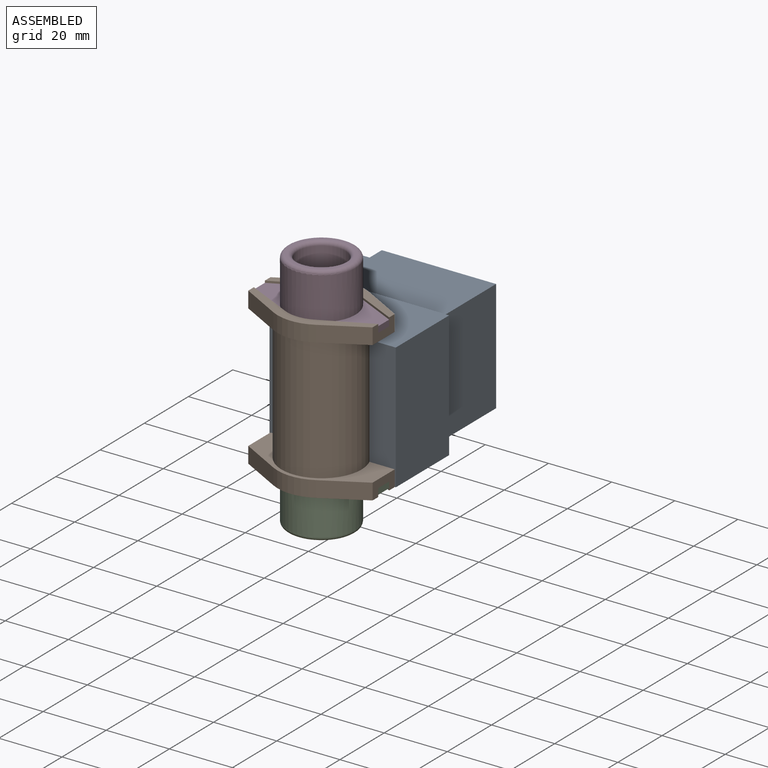
[diagram: assembled view]
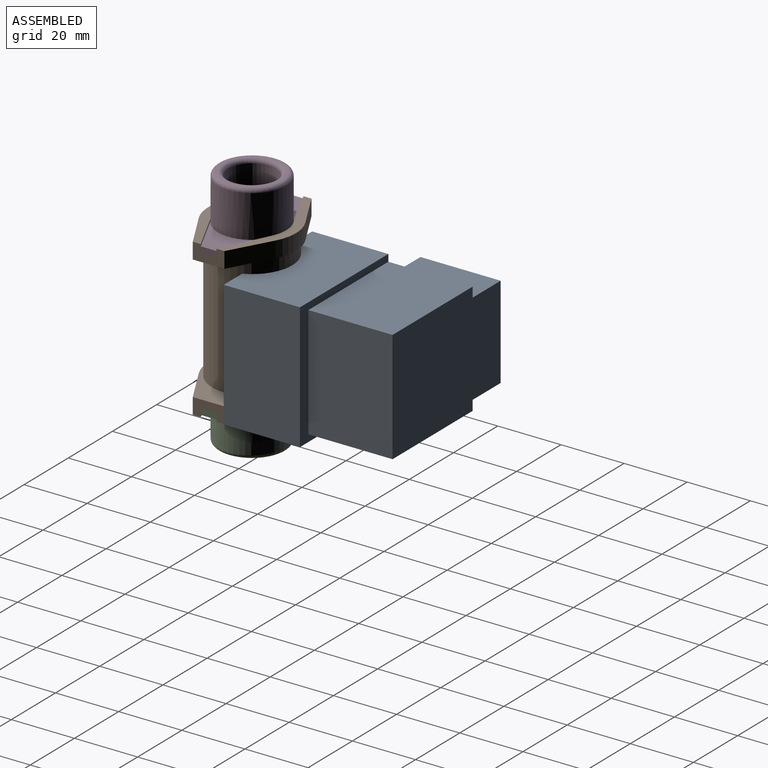
[diagram: assembled view, second angle]
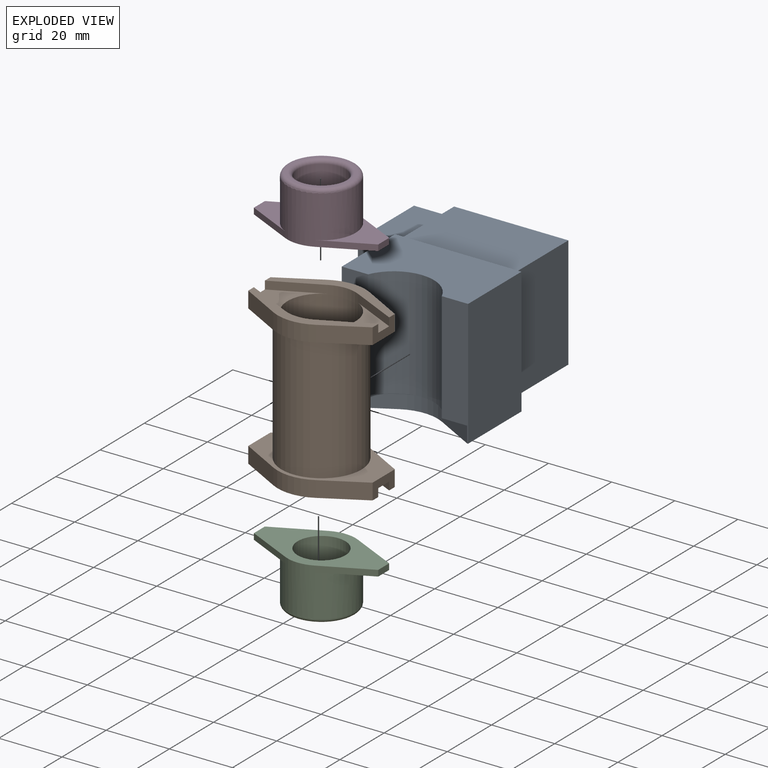
[diagram: exploded view]
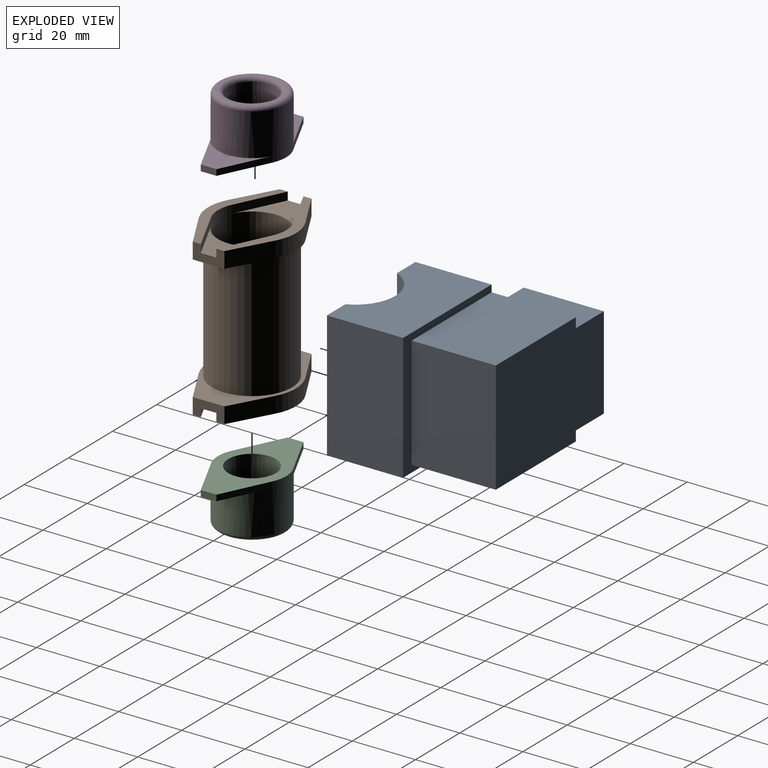
[diagram: exploded view, second angle]
ASSEMBLY  parts=4 mates=3
PART A: 20 faces, bbox 52.7x40x50.8 mm
  f0: plane 40.01x8.34mm, normal (0,0,-1), area 292.7mm2, adj f1,f2,f5,f15,f18,f19
  f1: plane 40.01x24.13mm, normal (0,-1,0), area 836mm2, adj f0,f3,f4,f5,f6,f19
  f2: plane 40.01x24.13mm, normal (0,1,0), area 760.6mm2, adj f0,f3,f4,f5,f6,f15,f16,f17
  f3: plane 40.01x8.34mm, normal (0,0,-1), area 292.7mm2, adj f1,f2,f4,f17,f18,f19
  f4: plane 40.01x24.13mm, normal (1,0,0), area 965.3mm2, adj f1,f2,f3,f6
  f5: plane 50.8x40.01mm, normal (-1,0,0), area 1170.5mm2, adj f0,f1,f2,f6,f7,f8,f10,f11
  f6: plane 40.01x40.01mm, normal (0,0,1), area 313.3mm2, adj f1,f2,f4,f5,f7,f8,f9
  f7: plane 36.2x26.67mm, normal (0,-1,0), area 965.3mm2, adj f5,f6,f9,f10
  f8: plane 36.2x26.67mm, normal (0,1,0), area 965.3mm2, adj f5,f6,f9,f10
  f9: plane 35.56x26.67mm, normal (1,0,0), area 948.4mm2, adj f6,f7,f8,f10
  f10: plane 48.9x35.56mm, normal (0,0,1), area 1658.7mm2, adj f5,f7,f8,f9,f11,f12,f13
  f11: plane 25.4x12.7mm, normal (0,1,0), area 322.6mm2, adj f5,f10,f12,f14
  f12: plane 29.26x25.4mm, normal (-1,0,0), area 743.2mm2, adj f10,f11,f13,f14
  f13: plane 25.4x12.7mm, normal (0,-1,0), area 322.6mm2, adj f5,f10,f12,f14
  f14: plane 29.26x12.7mm, normal (0,0,-1), area 371.6mm2, adj f5,f11,f12,f13
  f15: plane 12.96x7.16mm, normal (0.48,0,-0.88), area 75.2mm2, adj f0,f2,f16,f18
  f16: cylinder r=13.91mm len=13.44mm, axis (0,1,0), area 71.3mm2, adj f2,f15,f17,f18
  f17: plane 12.96x7.16mm, normal (-0.48,0,-0.88), area 75.2mm2, adj f2,f3,f16,f18
  f18: plane 39.37x8.89mm, normal (0,1,0), area 75.4mm2, adj f0,f3,f15,f16,f17,f19
  f19: cylinder r=12.7mm len=34.93mm, axis (0,1,0), area 1033.2mm2, adj f0,f1,f3,f18
PART B: 36 faces, bbox 39.4x27.8x49.5 mm
  f0: plane 19.44x14.99mm, normal (0,0,1), area 97.9mm2, adj f16,f18,f19,f28
  f1: plane 19.44x14.99mm, normal (0,0,-1), area 97.9mm2, adj f6,f18,f31,f34
  f2: plane 39.37x11.43mm, normal (0,0,-1), area 121.3mm2, adj f3,f6,f18,f25,f26,f27,f31,f32
  f3: plane 10.03x5.08mm, normal (1,0,0), area 38.4mm2, adj f2,f4,f10,f14,f27,f32,f33,f35
  f4: plane 39.37x11.43mm, normal (0,0,-1), area 121.3mm2, adj f3,f6,f10,f11,f12,f18,f33,f34
  f5: plane 10.03x5.08mm, normal (1,0,0), area 38.4mm2, adj f7,f13,f17,f20,f21,f24,f29,f30
  f6: plane 10.03x5.08mm, normal (-1,0,0), area 38.4mm2, adj f1,f2,f4,f12,f14,f25,f31,f34
  f7: plane 12.96x7.16mm, normal (0.48,0.88,0), area 75.2mm2, adj f5,f8,f13,f17
  f8: cylinder r=13.91mm len=13.44mm, axis (0,0,-1), area 71.3mm2, adj f7,f9,f13,f17
  f9: plane 12.96x7.16mm, normal (-0.48,0.88,0), area 75.2mm2, adj f8,f13,f16,f17
  f10: plane 12.96x7.16mm, normal (0.48,0.88,0), area 75.2mm2, adj f3,f4,f11,f14
  f11: cylinder r=13.91mm len=13.44mm, axis (0,0,-1), area 71.3mm2, adj f4,f10,f12,f14
  f12: plane 12.96x7.16mm, normal (-0.48,0.88,0), area 75.2mm2, adj f4,f6,f11,f14
  f13: plane 39.37x27.81mm, normal (0,0,-1), area 297.8mm2, adj f5,f7,f8,f9,f15,f16,f22,f23
  f14: plane 39.37x27.81mm, normal (0,0,1), area 297.8mm2, adj f3,f6,f10,f11,f12,f15,f25,f26
  f15: cylinder r=12.7mm len=39.37mm, axis (0,0,-1), area 3141.6mm2, adj f13,f14
  f16: plane 10.03x5.08mm, normal (-1,0,0), area 38.4mm2, adj f0,f9,f13,f17,f19,f21,f22,f28
  f17: plane 39.37x11.43mm, normal (0,0,1), area 121.3mm2, adj f5,f7,f8,f9,f16,f18,f19,f20
  f18: cylinder r=10.79mm len=49.53mm, axis (0,0,-1), area 3113.7mm2, adj f0,f1,f2,f4,f17,f19,f20,f21
  f19: plane 14.99x7.24mm, normal (0.44,-0.9,0), area 42.3mm2, adj f0,f16,f17,f18
  f20: plane 14.99x7.24mm, normal (-0.44,-0.9,0), area 42.3mm2, adj f5,f17,f18,f30
  f21: plane 39.37x11.43mm, normal (0,0,1), area 121.3mm2, adj f5,f16,f18,f22,f23,f24,f28,f29
  f22: plane 12.96x7.16mm, normal (-0.48,-0.88,0), area 75.2mm2, adj f13,f16,f21,f23
  f23: cylinder r=13.91mm len=13.44mm, axis (0,0,-1), area 71.3mm2, adj f13,f21,f22,f24
  f24: plane 12.96x7.16mm, normal (0.48,-0.88,0), area 75.2mm2, adj f5,f13,f21,f23
  f25: plane 12.96x7.16mm, normal (-0.48,-0.88,0), area 75.2mm2, adj f2,f6,f14,f26
  f26: cylinder r=13.91mm len=13.44mm, axis (0,0,-1), area 71.3mm2, adj f2,f14,f25,f27
  f27: plane 12.96x7.16mm, normal (0.48,-0.88,0), area 75.2mm2, adj f2,f3,f14,f26
  f28: plane 14.99x7.24mm, normal (0.44,0.9,0), area 42.3mm2, adj f0,f16,f18,f21
  f29: plane 14.99x7.24mm, normal (-0.44,0.9,0), area 42.3mm2, adj f5,f18,f21,f30
  f30: plane 19.44x14.99mm, normal (0,0,1), area 97.9mm2, adj f5,f18,f20,f29
  f31: plane 14.99x7.24mm, normal (0.44,0.9,0), area 42.3mm2, adj f1,f2,f6,f18
  f32: plane 14.99x7.24mm, normal (-0.44,0.9,0), area 42.3mm2, adj f2,f3,f18,f35
  f33: plane 14.99x7.24mm, normal (-0.44,-0.9,0), area 42.3mm2, adj f3,f4,f18,f35
  f34: plane 14.99x7.24mm, normal (0.44,-0.9,0), area 42.3mm2, adj f1,f4,f6,f18
  f35: plane 19.44x14.99mm, normal (0,0,-1), area 97.9mm2, adj f3,f18,f32,f33
PART C: 14 faces, bbox 39.4x23.4x16.5 mm
  f0: plane 14.99x7.24mm, normal (-0.44,0.9,0), area 31.7mm2, adj f1,f3,f4,f10
  f1: plane 4.95x1.91mm, normal (-1,0,0), area 9.4mm2, adj f0,f2,f3,f4
  f2: plane 14.99x7.24mm, normal (-0.44,-0.9,0), area 31.7mm2, adj f1,f3,f4,f10
  f3: plane 19.44x14.99mm, normal (0,0,1), area 97.9mm2, adj f0,f1,f2,f10
  f4: plane 39.37x21.59mm, normal (0,0,-1), area 382.4mm2, adj f0,f1,f2,f5,f6,f7,f9,f10
  f5: plane 14.99x7.24mm, normal (0.44,-0.9,0), area 31.7mm2, adj f4,f6,f8,f10
  f6: plane 4.95x1.91mm, normal (1,0,0), area 9.4mm2, adj f4,f5,f7,f8
  f7: plane 14.99x7.24mm, normal (0.44,0.9,0), area 31.7mm2, adj f4,f6,f8,f10
  f8: plane 19.44x14.99mm, normal (0,0,1), area 97.9mm2, adj f5,f6,f7,f10
  f9: cylinder r=7.56mm len=15.24mm, axis (0,0,-1), area 723.6mm2, adj f4,f12
  f10: cylinder r=10.79mm len=21.59mm, axis (0,0,-1), area 941.5mm2, adj f0,f2,f3,f4,f5,f7,f8,f13
  f11: plane 19.05x19.05mm, normal (0,0,1), area 40.3mm2, adj f12,f13
  f12: torus R=8.83mm, axis (0,0,1), area 100.5mm2, adj f9,f11
  f13: torus R=9.53mm, axis (0,0,1), area 129.5mm2, adj f10,f11
PART D: same geometry as C
PLACE A rot(axis=(-1,0,0),90deg) t=(0,5.27,-48.77)mm
PLACE B t=(0,-50.55,-23.37)mm fixed
PLACE C rot(axis=(1,0,0),180deg) t=(0,0.25,-20.83)mm
PLACE D t=(0,0.25,23.62)mm
MATE fastened D.f9 <-> B.f15  axis (0,0,-1) through (0,0.25,23.62)mm
MATE planar A.f18 <-> B.f8  axis (0,0,-1) through (0,8.97,-18.29)mm
MATE fastened C.f9 <-> B.f15  axis (0,0,1) through (0,0.25,-20.83)mm
